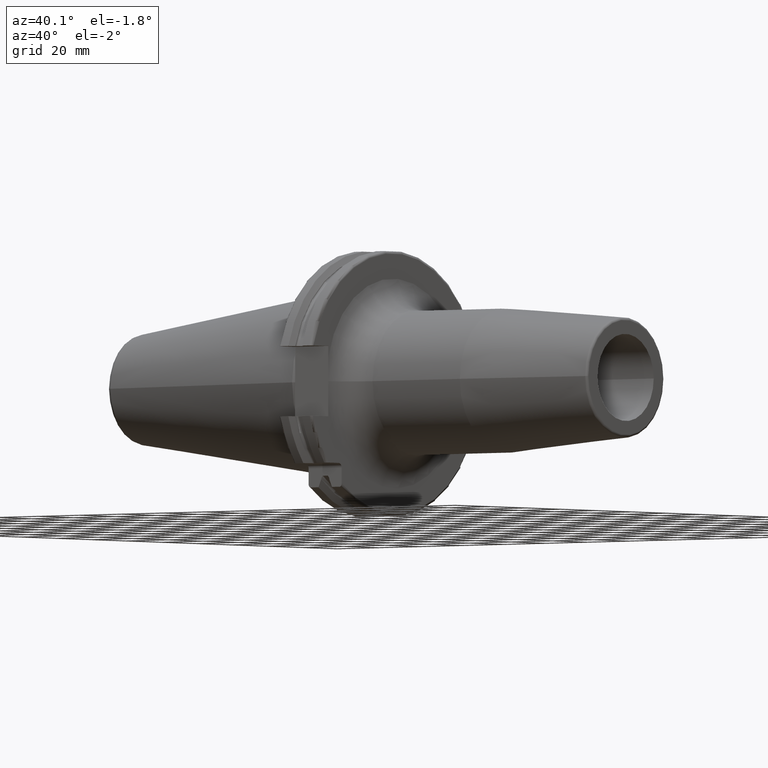
[diagram: clean part render]
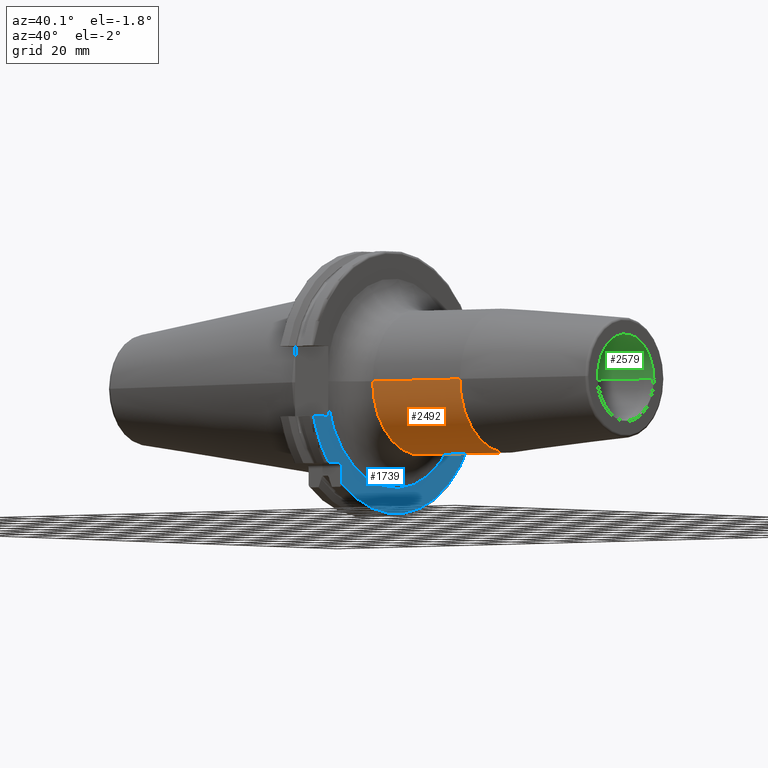
[diagram: same view with three faces highlighted in distinct colors, each labeled with its STEP entity id]
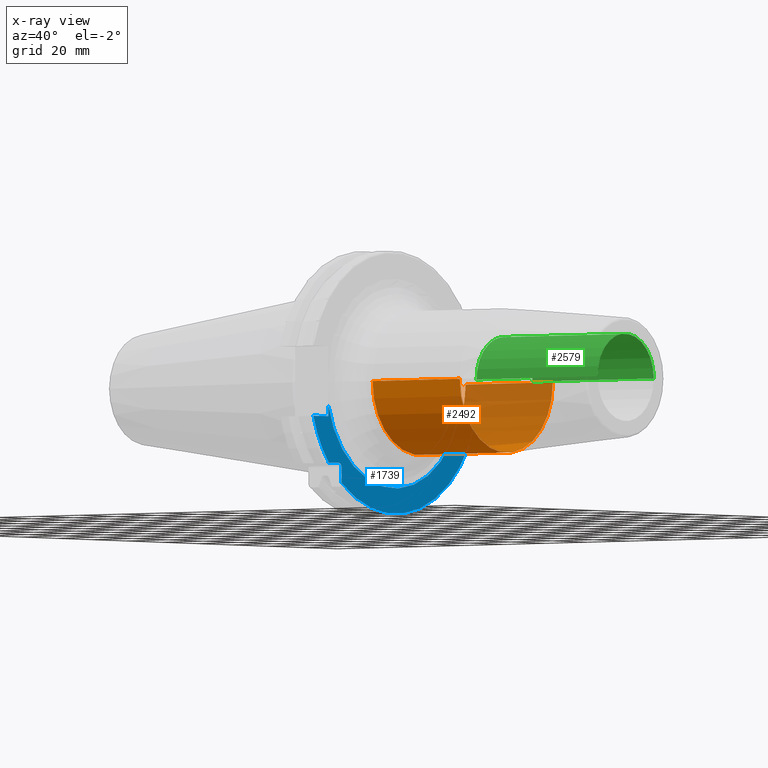
[diagram: x-ray of the same camera — body ghosted, the three highlighted faces saturated]
A machine part, auxiliary view with three faces highlighted in distinct colors.
The next image is the same camera in x-ray (body ghosted, the three faces saturated) — at least one of them is partly hidden behind the body in this view.
Their STEP definitions:

[orange] entity #2492 — the highlighted cylindrical surface (partial cylindrical patch) has radius 26.5 mm, axis along (1, 0, 0).
#962=CARTESIAN_POINT('',(3.105E1,0.E0,0.E0));
#963=DIRECTION('',(1.E0,0.E0,0.E0));
#964=DIRECTION('',(0.E0,-1.E0,0.E0));
#965=AXIS2_PLACEMENT_3D('',#962,#963,#964);
#967=DIRECTION('',(-9.999999992300E-1,2.427432378256E-9,-3.924221130613E-5));
#968=VECTOR('',#967,4.177207871938E1);
#969=CARTESIAN_POINT('',(7.282207868721E1,-2.65E1,0.E0));
#970=LINE('',#969,#968);
#971=CARTESIAN_POINT('',(7.282207868721E1,0.E0,0.E0));
#972=DIRECTION('',(-1.E0,0.E0,0.E0));
#973=DIRECTION('',(0.E0,1.E0,0.E0));
#974=AXIS2_PLACEMENT_3D('',#971,#972,#973);
#976=DIRECTION('',(-9.999999992300E-1,-2.427432378256E-9,3.924221130611E-5));
#977=VECTOR('',#976,4.177207871938E1);
#978=CARTESIAN_POINT('',(7.282207868721E1,2.65E1,0.E0));
#979=LINE('',#978,#977);
#1472=CARTESIAN_POINT('',(7.282207868721E1,2.65E1,0.E0));
#1473=CARTESIAN_POINT('',(7.282207868721E1,-2.65E1,0.E0));
#1474=VERTEX_POINT('',#1472);
#1475=VERTEX_POINT('',#1473);
#1488=CARTESIAN_POINT('',(3.105E1,-2.65E1,0.E0));
#1489=CARTESIAN_POINT('',(3.105E1,2.65E1,0.E0));
#1490=VERTEX_POINT('',#1488);
#1491=VERTEX_POINT('',#1489);
#2480=CARTESIAN_POINT('',(1.35025E1,0.E0,0.E0));
#2481=DIRECTION('',(1.E0,0.E0,0.E0));
#2482=DIRECTION('',(0.E0,-1.E0,0.E0));
#2483=AXIS2_PLACEMENT_3D('',#2480,#2481,#2482);
#2484=CYLINDRICAL_SURFACE('',#2483,2.65E1);
#2485=ORIENTED_EDGE('',*,*,#1768,.F.);
#2486=ORIENTED_EDGE('',*,*,#2475,.F.);
#2488=ORIENTED_EDGE('',*,*,#2487,.F.);
#2489=ORIENTED_EDGE('',*,*,#2471,.T.);
#2490=EDGE_LOOP('',(#2485,#2486,#2488,#2489));
#2491=FACE_OUTER_BOUND('',#2490,.F.);
#2492=ADVANCED_FACE('',(#2491),#2484,.T.);
#966=CIRCLE('',#965,2.65E1);
#975=CIRCLE('',#974,2.65E1);
#1768=EDGE_CURVE('',#1490,#1491,#966,.T.);
#2471=EDGE_CURVE('',#1474,#1491,#979,.T.);
#2475=EDGE_CURVE('',#1475,#1490,#970,.T.);
#2487=EDGE_CURVE('',#1474,#1475,#975,.T.);

[blue] entity #1739 — the highlighted planar face has unit normal (1, 0, 0).
#126=CARTESIAN_POINT('',(1.905E1,0.E0,0.E0));
#127=DIRECTION('',(1.E0,0.E0,0.E0));
#128=DIRECTION('',(0.E0,-9.740227571911E-1,-2.264501456698E-1));
#129=AXIS2_PLACEMENT_3D('',#126,#127,#128);
#131=DIRECTION('',(0.E0,-9.999999999975E-1,-2.250998656667E-6));
#132=VECTOR('',#131,9.686978786382E0);
#133=CARTESIAN_POINT('',(1.905E1,4.596149373389E1,-1.29E1));
#134=LINE('',#133,#132);
#135=DIRECTION('',(0.E0,0.E0,1.E0));
#136=VECTOR('',#135,5.653810627237E0);
#137=CARTESIAN_POINT('',(1.905E1,-2.985E1,-3.725381062724E1));
#138=LINE('',#137,#136);
#139=DIRECTION('',(0.E0,-1.E0,0.E0));
#140=VECTOR('',#139,5.653810627237E0);
#141=CARTESIAN_POINT('',(1.905E1,-3.16E1,-2.985E1));
#142=LINE('',#141,#140);
#143=DIRECTION('',(0.E0,1.E0,0.E0));
#144=VECTOR('',#143,8.461493733886E0);
#145=CARTESIAN_POINT('',(1.905E1,-4.596149373389E1,-1.29E1));
#146=LINE('',#145,#144);
#147=DIRECTION('',(0.E0,1.175596282797E-6,9.999999999993E-1));
#148=VECTOR('',#147,4.181993793624E0);
#149=CARTESIAN_POINT('',(1.905E1,-3.75E1,-1.29E1));
#150=LINE('',#149,#148);
#554=CARTESIAN_POINT('',(1.905E1,-3.16E1,-3.16E1));
#555=DIRECTION('',(-1.E0,0.E0,0.E0));
#556=DIRECTION('',(0.E0,0.E0,1.E0));
#557=AXIS2_PLACEMENT_3D('',#554,#555,#556);
#577=CARTESIAN_POINT('',(1.905E1,4.596149373389E1,-1.29E1));
#589=CARTESIAN_POINT('',(1.905E1,0.E0,0.E0));
#590=DIRECTION('',(-1.E0,0.E0,0.E0));
#591=DIRECTION('',(0.E0,9.627964123359E-1,-2.702278083268E-1));
#592=AXIS2_PLACEMENT_3D('',#589,#590,#591);
#605=CARTESIAN_POINT('',(1.905E1,0.E0,0.E0));
#606=DIRECTION('',(-1.E0,0.E0,0.E0));
#607=DIRECTION('',(0.E0,-7.803888060170E-1,-6.252945797329E-1));
#608=AXIS2_PLACEMENT_3D('',#605,#606,#607);
#619=CARTESIAN_POINT('',(1.905E1,-3.725381062724E1,-2.985E1));
#1374=CARTESIAN_POINT('',(1.905E1,-4.596149373389E1,-1.29E1));
#1375=CARTESIAN_POINT('',(1.905E1,-3.75E1,-1.29E1));
#1376=VERTEX_POINT('',#1374);
#1377=VERTEX_POINT('',#1375);
#1420=VERTEX_POINT('',#577);
#1437=CARTESIAN_POINT('',(1.905E1,-2.985E1,-3.725381062724E1));
#1438=VERTEX_POINT('',#1437);
#1445=CARTESIAN_POINT('',(1.905E1,-3.16E1,-2.985E1));
#1446=CARTESIAN_POINT('',(1.905E1,-2.985E1,-3.16E1));
#1447=VERTEX_POINT('',#1445);
#1448=VERTEX_POINT('',#1446);
#1470=VERTEX_POINT('',#619);
#1484=CARTESIAN_POINT('',(1.905E1,-3.749987615186E1,-8.718330608288E0));
#1485=CARTESIAN_POINT('',(1.905E1,3.627451358574E1,-1.289998698132E1));
#1486=VERTEX_POINT('',#1484);
#1487=VERTEX_POINT('',#1485);
#1715=CARTESIAN_POINT('',(1.905E1,0.E0,0.E0));
#1716=DIRECTION('',(1.E0,0.E0,0.E0));
#1717=DIRECTION('',(0.E0,-1.E0,0.E0));
#1718=AXIS2_PLACEMENT_3D('',#1715,#1716,#1717);
#1719=PLANE('',#1718);
#1721=ORIENTED_EDGE('',*,*,#1720,.T.);
#1722=ORIENTED_EDGE('',*,*,#1683,.F.);
#1724=ORIENTED_EDGE('',*,*,#1723,.T.);
#1726=ORIENTED_EDGE('',*,*,#1725,.T.);
#1728=ORIENTED_EDGE('',*,*,#1727,.F.);
#1730=ORIENTED_EDGE('',*,*,#1729,.T.);
#1732=ORIENTED_EDGE('',*,*,#1731,.T.);
#1734=ORIENTED_EDGE('',*,*,#1733,.T.);
#1736=ORIENTED_EDGE('',*,*,#1735,.T.);
#1737=EDGE_LOOP('',(#1721,#1722,#1724,#1726,#1728,#1730,#1732,#1734,#1736));
#1738=FACE_OUTER_BOUND('',#1737,.F.);
#1739=ADVANCED_FACE('',(#1738),#1719,.T.);
#130=CIRCLE('',#129,3.85E1);
#558=CIRCLE('',#557,1.75E0);
#593=CIRCLE('',#592,4.77375E1);
#609=CIRCLE('',#608,4.77375E1);
#1683=EDGE_CURVE('',#1420,#1487,#134,.T.);
#1720=EDGE_CURVE('',#1486,#1487,#130,.T.);
#1723=EDGE_CURVE('',#1420,#1438,#593,.T.);
#1725=EDGE_CURVE('',#1438,#1448,#138,.T.);
#1727=EDGE_CURVE('',#1447,#1448,#558,.T.);
#1729=EDGE_CURVE('',#1447,#1470,#142,.T.);
#1731=EDGE_CURVE('',#1470,#1376,#609,.T.);
#1733=EDGE_CURVE('',#1376,#1377,#146,.T.);
#1735=EDGE_CURVE('',#1377,#1486,#150,.T.);

[green] entity #2579 — the highlighted cylindrical surface (partial cylindrical patch) has radius 16 mm, axis along (-1, 0, 0).
#1018=CARTESIAN_POINT('',(1.3E2,0.E0,0.E0));
#1019=DIRECTION('',(-1.E0,0.E0,0.E0));
#1020=DIRECTION('',(0.E0,-1.E0,0.E0));
#1021=AXIS2_PLACEMENT_3D('',#1018,#1019,#1020);
#1028=DIRECTION('',(-1.E0,0.E0,0.E0));
#1029=VECTOR('',#1028,5.8E1);
#1030=CARTESIAN_POINT('',(1.3E2,-1.6E1,0.E0));
#1031=LINE('',#1030,#1029);
#1032=DIRECTION('',(-1.E0,0.E0,0.E0));
#1033=VECTOR('',#1032,5.8E1);
#1034=CARTESIAN_POINT('',(1.3E2,1.6E1,0.E0));
#1035=LINE('',#1034,#1033);
#1036=CARTESIAN_POINT('',(7.2E1,0.E0,0.E0));
#1037=DIRECTION('',(-1.E0,0.E0,0.E0));
#1038=DIRECTION('',(0.E0,-1.E0,0.E0));
#1039=AXIS2_PLACEMENT_3D('',#1036,#1037,#1038);
#1496=CARTESIAN_POINT('',(7.2E1,-1.6E1,0.E0));
#1497=CARTESIAN_POINT('',(7.2E1,1.6E1,0.E0));
#1498=VERTEX_POINT('',#1496);
#1499=VERTEX_POINT('',#1497);
#1500=CARTESIAN_POINT('',(1.3E2,-1.6E1,0.E0));
#1501=CARTESIAN_POINT('',(1.3E2,1.6E1,0.E0));
#1502=VERTEX_POINT('',#1500);
#1503=VERTEX_POINT('',#1501);
#2565=CARTESIAN_POINT('',(1.3E2,0.E0,0.E0));
#2566=DIRECTION('',(-1.E0,0.E0,0.E0));
#2567=DIRECTION('',(0.E0,-1.E0,0.E0));
#2568=AXIS2_PLACEMENT_3D('',#2565,#2566,#2567);
#2569=CYLINDRICAL_SURFACE('',#2568,1.6E1);
#2570=ORIENTED_EDGE('',*,*,#2558,.T.);
#2572=ORIENTED_EDGE('',*,*,#2571,.T.);
#2574=ORIENTED_EDGE('',*,*,#2573,.F.);
#2576=ORIENTED_EDGE('',*,*,#2575,.F.);
#2577=EDGE_LOOP('',(#2570,#2572,#2574,#2576));
#2578=FACE_OUTER_BOUND('',#2577,.F.);
#2579=ADVANCED_FACE('',(#2578),#2569,.F.);
#1022=CIRCLE('',#1021,1.6E1);
#1040=CIRCLE('',#1039,1.6E1);
#2558=EDGE_CURVE('',#1502,#1503,#1022,.T.);
#2571=EDGE_CURVE('',#1503,#1499,#1035,.T.);
#2573=EDGE_CURVE('',#1498,#1499,#1040,.T.);
#2575=EDGE_CURVE('',#1502,#1498,#1031,.T.);